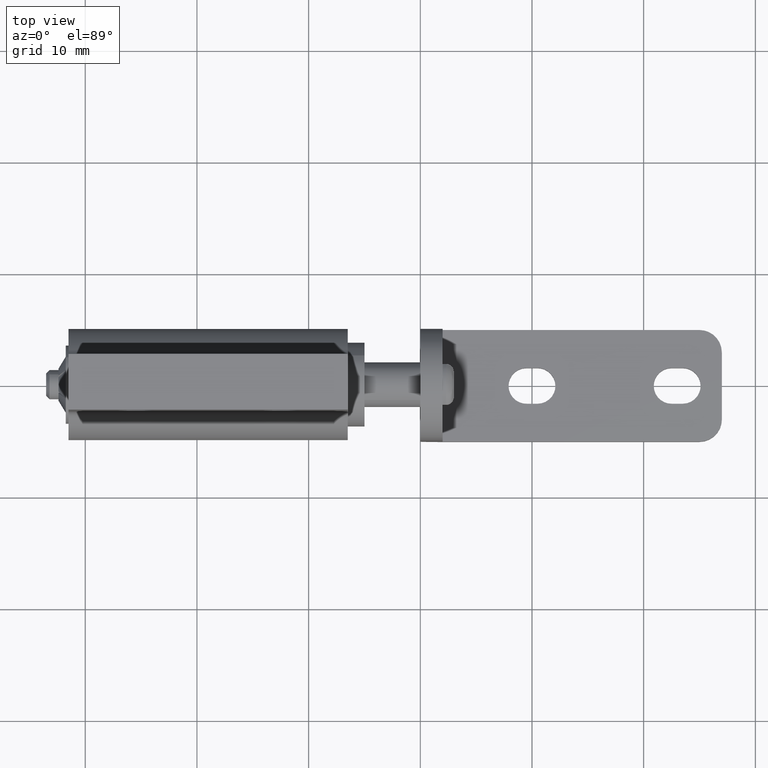
[diagram: clean part render]
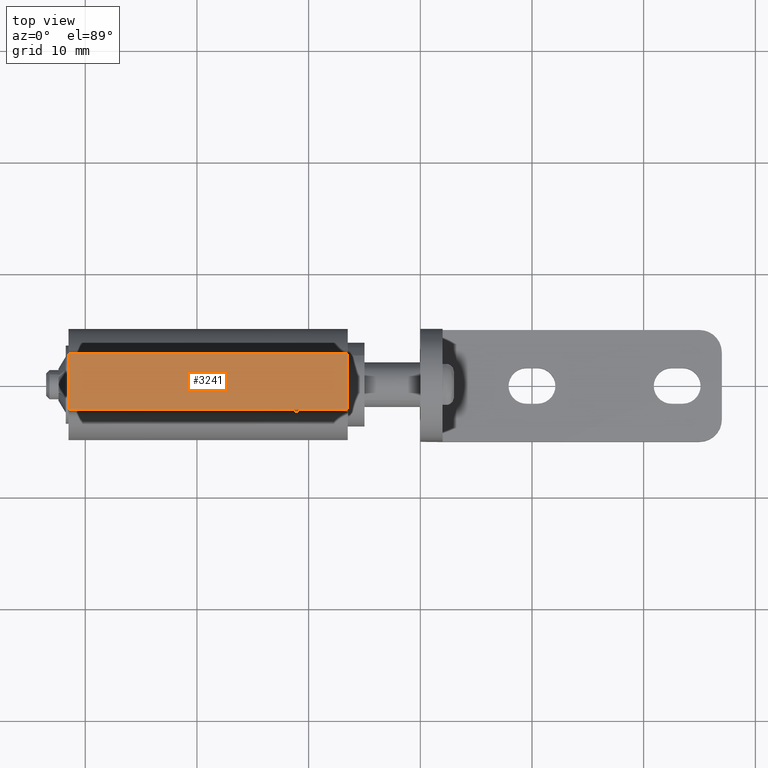
[diagram: same view with one face highlighted and labeled with its STEP entity id]
A machine part, top view. The second image highlights one B-rep face of the part: STEP entity #3241.
In plain terms, the highlighted face is a freeform B-spline surface patch.
Its self-contained STEP definition (entity closure, byte-faithful):
#2960=CARTESIAN_POINT('',(-31.500000000000000,-2.499999999999970,15.0));
#2961=VERTEX_POINT('',#2960);
#2967=CARTESIAN_POINT('',(-31.500000000000000,2.500000000000000,15.0));
#2968=VERTEX_POINT('',#2967);
#2969=CARTESIAN_POINT('',(-31.500000000000000,-2.499999999999970,15.0));
#2970=CARTESIAN_POINT('',(-31.500000000000000,2.500000000000000,15.0));
#2971=QUASI_UNIFORM_CURVE('',1,(#2969,#2970),.UNSPECIFIED.,.F.,.U.);
#2972=EDGE_CURVE('',#2961,#2968,#2971,.T.);
#3214=CARTESIAN_POINT('',(-32.748749951545157,-2.749749990308999,15.0));
#3215=CARTESIAN_POINT('',(-5.251249377902431,-2.749749990308999,15.0));
#3216=CARTESIAN_POINT('',(-32.748749951545157,2.749750124419478,15.0));
#3217=CARTESIAN_POINT('',(-5.251249377902431,2.749750124419478,15.0));
#3218=B_SPLINE_SURFACE_WITH_KNOTS('',1,1,((#3214,#3216),(#3215,#3217)),.UNSPECIFIED.,.F.,.F.,.U.,(2,2),(2,2),(0.0,27.497500573642728),(0.0,5.499500114728477),.UNSPECIFIED.);
#3219=ORIENTED_EDGE('',*,*,#2972,.F.);
#3220=CARTESIAN_POINT('',(-6.499999999999840,-2.499999999999970,15.0));
#3221=VERTEX_POINT('',#3220);
#3222=CARTESIAN_POINT('',(-6.499999999999840,-2.499999999999970,15.0));
#3223=CARTESIAN_POINT('',(-31.500000000000000,-2.499999999999970,15.0));
#3224=QUASI_UNIFORM_CURVE('',1,(#3222,#3223),.UNSPECIFIED.,.F.,.U.);
#3225=EDGE_CURVE('',#3221,#2961,#3224,.T.);
#3226=ORIENTED_EDGE('',*,*,#3225,.F.);
#3227=CARTESIAN_POINT('',(-6.499999999999840,2.500000000000000,15.0));
#3228=VERTEX_POINT('',#3227);
#3229=CARTESIAN_POINT('',(-6.499999999999840,-2.499999999999970,15.0));
#3230=CARTESIAN_POINT('',(-6.499999999999840,2.500000000000000,15.0));
#3231=QUASI_UNIFORM_CURVE('',1,(#3229,#3230),.UNSPECIFIED.,.F.,.U.);
#3232=EDGE_CURVE('',#3221,#3228,#3231,.T.);
#3233=ORIENTED_EDGE('',*,*,#3232,.T.);
#3234=CARTESIAN_POINT('',(-6.499999999999840,2.500000000000000,15.0));
#3235=CARTESIAN_POINT('',(-31.500000000000000,2.500000000000000,15.0));
#3236=QUASI_UNIFORM_CURVE('',1,(#3234,#3235),.UNSPECIFIED.,.F.,.U.);
#3237=EDGE_CURVE('',#3228,#2968,#3236,.T.);
#3238=ORIENTED_EDGE('',*,*,#3237,.T.);
#3239=EDGE_LOOP('',(#3219,#3226,#3233,#3238));
#3240=FACE_OUTER_BOUND('',#3239,.T.);
#3241=ADVANCED_FACE('',(#3240),#3218,.T.);